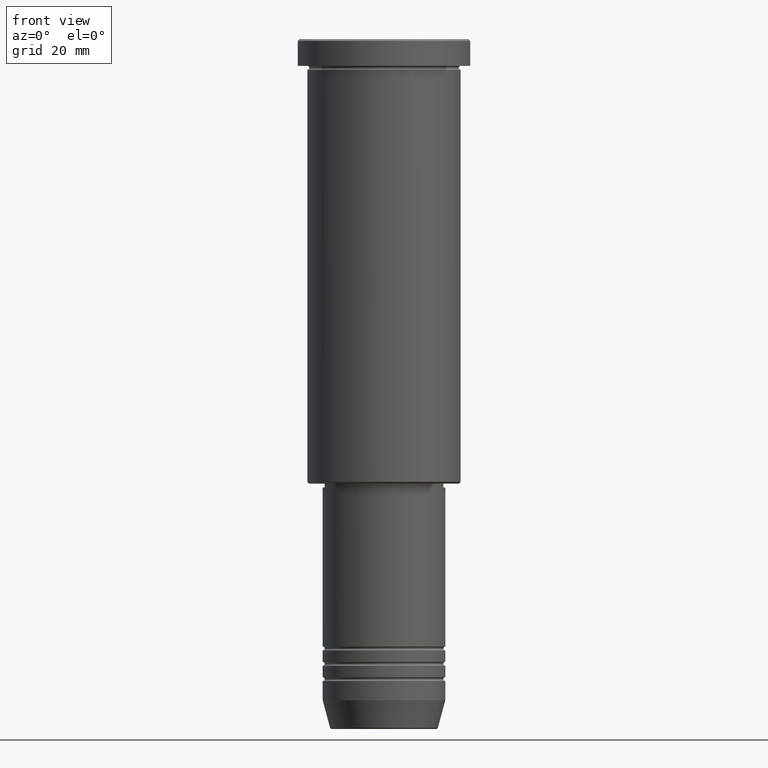
[diagram: clean part render]
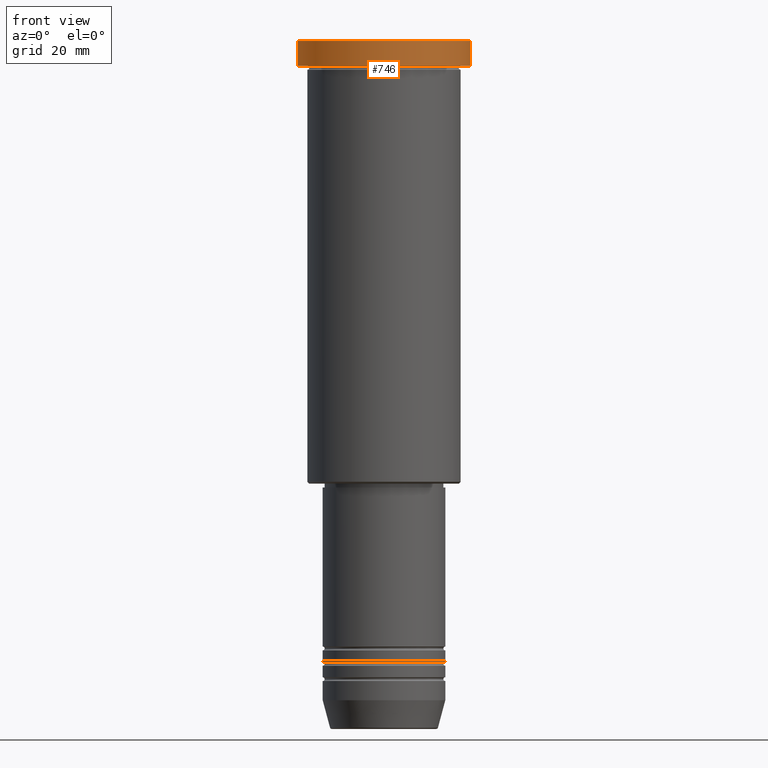
[diagram: same view with one face highlighted and labeled with its STEP entity id]
A machine part, front view. The second image highlights one B-rep face of the part: STEP entity #746.
In plain terms, the highlighted cylindrical surface (partial cylindrical patch) has radius 22.5 mm, axis along (-0, -0, 1).
Its self-contained STEP definition (entity closure, byte-faithful):
#7 = AXIS2_PLACEMENT_3D ( 'NONE', #89, #919, #552 ) ;
#85 = EDGE_CURVE ( 'NONE', #478, #1002, #863, .T. ) ;
#89 = CARTESIAN_POINT ( 'NONE',  ( 0.000000000000000000, 0.000000000000000000, -6.999999999999995559 ) ) ;
#114 = FACE_OUTER_BOUND ( 'NONE', #1058, .T. ) ;
#218 = AXIS2_PLACEMENT_3D ( 'NONE', #667, #953, #364 ) ;
#318 = EDGE_CURVE ( 'NONE', #1120, #478, #811, .T. ) ;
#330 = CARTESIAN_POINT ( 'NONE',  ( 22.50000000000000000, 0.000000000000000000, -0.4999999999999935052 ) ) ;
#332 = CARTESIAN_POINT ( 'NONE',  ( 0.000000000000000000, 0.000000000000000000, -0.4999999999999935052 ) ) ;
#364 = DIRECTION ( 'NONE',  ( 1.000000000000000000, 0.000000000000000000, 0.000000000000000000 ) ) ;
#369 = CARTESIAN_POINT ( 'NONE',  ( -22.50000000000000000, 2.755455298081544778E-15, 0.000000000000000000 ) ) ;
#410 = DIRECTION ( 'NONE',  ( 0.000000000000000000, 0.000000000000000000, -1.000000000000000000 ) ) ;
#460 = VERTEX_POINT ( 'NONE', #512 ) ;
#478 = VERTEX_POINT ( 'NONE', #507 ) ;
#496 = AXIS2_PLACEMENT_3D ( 'NONE', #332, #410, #786 ) ;
#507 = CARTESIAN_POINT ( 'NONE',  ( 22.50000000000000000, 0.000000000000000000, -6.999999999999995559 ) ) ;
#512 = CARTESIAN_POINT ( 'NONE',  ( -22.50000000000000000, 2.755455298081544778E-15, -0.4999999999999935052 ) ) ;
#529 = EDGE_CURVE ( 'NONE', #1002, #460, #1177, .T. ) ;
#552 = DIRECTION ( 'NONE',  ( 1.000000000000000000, 0.000000000000000000, 0.000000000000000000 ) ) ;
#644 = DIRECTION ( 'NONE',  ( -0.000000000000000000, -0.000000000000000000, 1.000000000000000000 ) ) ;
#666 = ORIENTED_EDGE ( 'NONE', *, *, #85, .T. ) ;
#667 = CARTESIAN_POINT ( 'NONE',  ( 0.000000000000000000, 0.000000000000000000, 0.000000000000000000 ) ) ;
#687 = DIRECTION ( 'NONE',  ( -0.000000000000000000, -0.000000000000000000, 1.000000000000000000 ) ) ;
#691 = ORIENTED_EDGE ( 'NONE', *, *, #318, .T. ) ;
#733 = VECTOR ( 'NONE', #687, 1000.000000000000000 ) ;
#746 = ADVANCED_FACE ( 'NONE', ( #114 ), #1121, .T. ) ;
#748 = ORIENTED_EDGE ( 'NONE', *, *, #835, .F. ) ;
#757 = CARTESIAN_POINT ( 'NONE',  ( 22.50000000000000000, 0.000000000000000000, 0.000000000000000000 ) ) ;
#758 = ORIENTED_EDGE ( 'NONE', *, *, #529, .T. ) ;
#786 = DIRECTION ( 'NONE',  ( 1.000000000000000000, 0.000000000000000000, 0.000000000000000000 ) ) ;
#811 = CIRCLE ( 'NONE', #7, 22.50000000000000000 ) ;
#835 = EDGE_CURVE ( 'NONE', #1120, #460, #1034, .T. ) ;
#863 = LINE ( 'NONE', #757, #733 ) ;
#917 = CARTESIAN_POINT ( 'NONE',  ( -22.50000000000000000, 2.755455298081544778E-15, -6.999999999999995559 ) ) ;
#919 = DIRECTION ( 'NONE',  ( -0.000000000000000000, -0.000000000000000000, 1.000000000000000000 ) ) ;
#953 = DIRECTION ( 'NONE',  ( -0.000000000000000000, -0.000000000000000000, 1.000000000000000000 ) ) ;
#1002 = VERTEX_POINT ( 'NONE', #330 ) ;
#1034 = LINE ( 'NONE', #369, #1100 ) ;
#1058 = EDGE_LOOP ( 'NONE', ( #748, #691, #666, #758 ) ) ;
#1100 = VECTOR ( 'NONE', #644, 1000.000000000000000 ) ;
#1120 = VERTEX_POINT ( 'NONE', #917 ) ;
#1121 = CYLINDRICAL_SURFACE ( 'NONE', #218, 22.50000000000000000 ) ;
#1177 = CIRCLE ( 'NONE', #496, 22.50000000000000000 ) ;